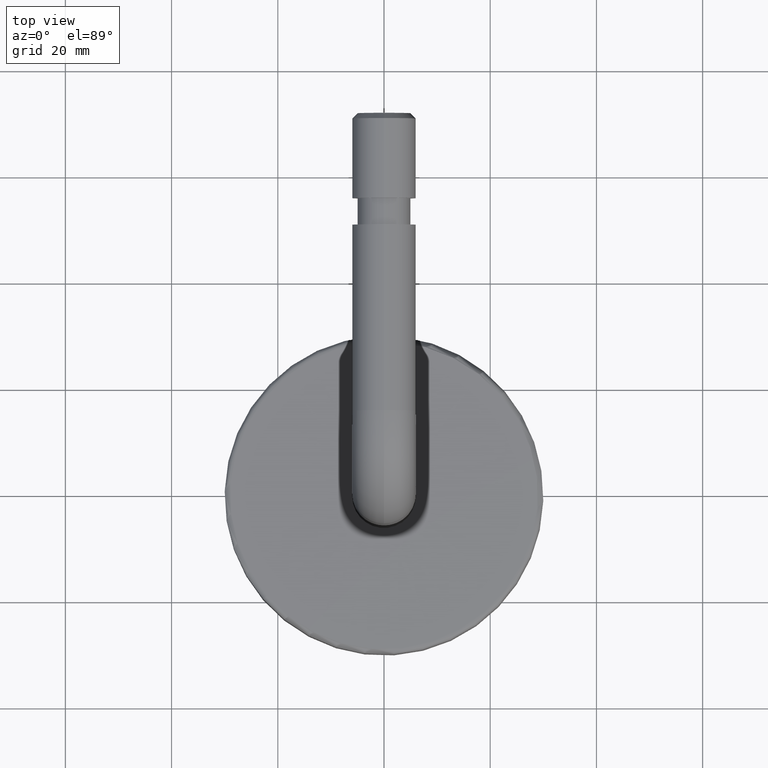
[diagram: clean part render]
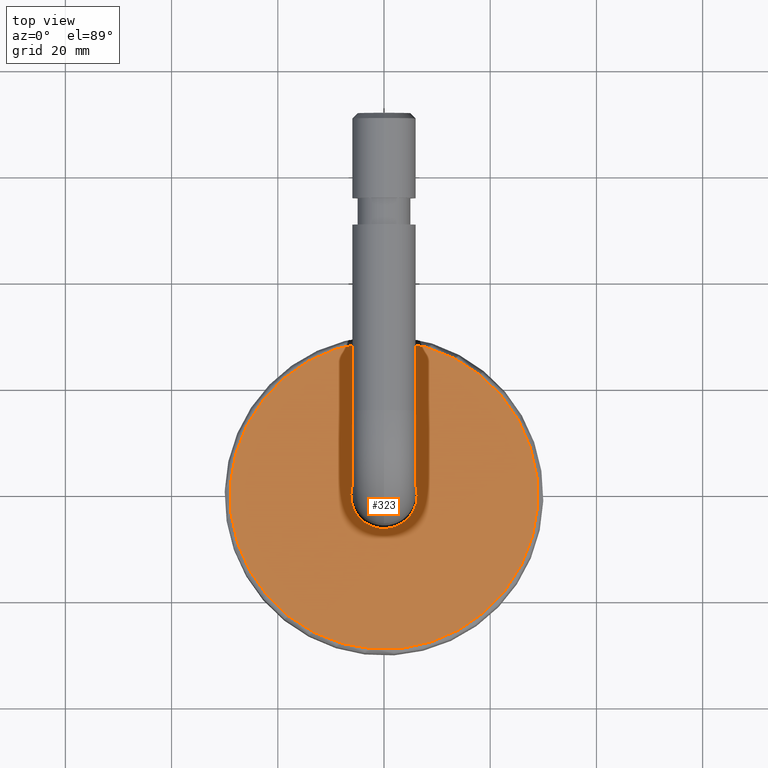
[diagram: same view with one face highlighted and labeled with its STEP entity id]
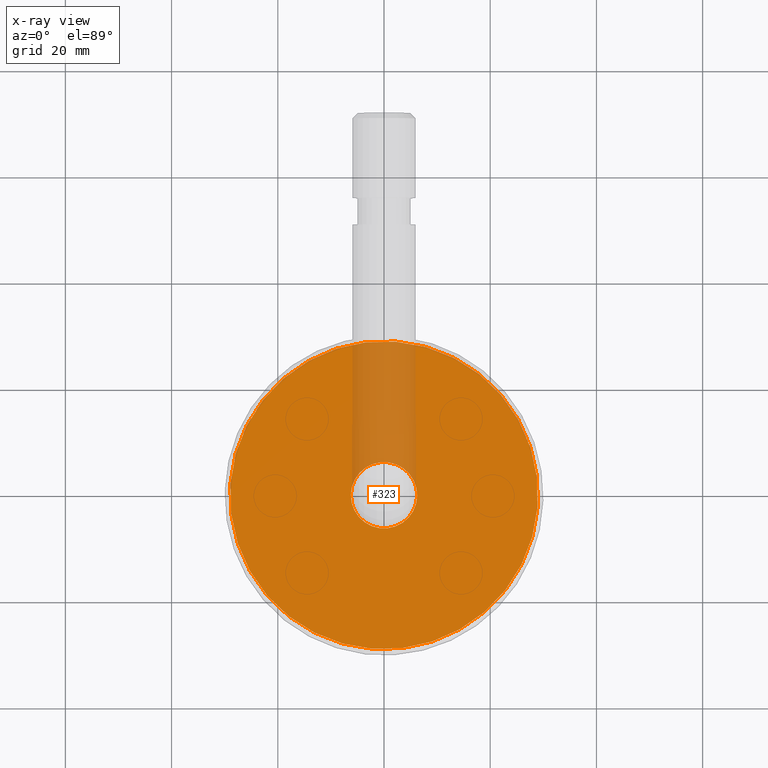
[diagram: x-ray of the same camera — body ghosted, the highlighted face saturated]
A machine part, top view. The second image highlights one B-rep face of the part: STEP entity #323.
The next image is the same camera in x-ray: the body ghosted, the highlighted face saturated — about 11% of this face is hidden behind the body in this view.
In plain terms, the highlighted planar face has unit normal (0, 0, -1).
Its self-contained STEP definition (entity closure, byte-faithful):
#323 = ADVANCED_FACE ( 'NONE', ( #9252, #2459 ), #7179, .F. ) ;
#345 = VERTEX_POINT ( 'NONE', #13220 ) ;
#387 = CARTESIAN_POINT ( 'NONE',  ( -28.99999999999999645, 3.612708057484691604E-15, 0.000000000000000000 ) ) ;
#804 = DIRECTION ( 'NONE',  ( 1.000000000000000000, 0.000000000000000000, 0.000000000000000000 ) ) ;
#1136 = ORIENTED_EDGE ( 'NONE', *, *, #13592, .F. ) ;
#2093 = DIRECTION ( 'NONE',  ( -0.000000000000000000, -0.000000000000000000, 1.000000000000000000 ) ) ;
#2459 = FACE_OUTER_BOUND ( 'NONE', #7699, .T. ) ;
#2870 = DIRECTION ( 'NONE',  ( -0.000000000000000000, -0.000000000000000000, 1.000000000000000000 ) ) ;
#3441 = EDGE_CURVE ( 'NONE', #345, #4980, #7507, .T. ) ;
#3916 = CARTESIAN_POINT ( 'NONE',  ( 0.000000000000000000, 0.000000000000000000, 0.000000000000000000 ) ) ;
#4926 = CARTESIAN_POINT ( 'NONE',  ( 0.000000000000000000, 6.249999999999998224, 0.000000000000000000 ) ) ;
#4980 = VERTEX_POINT ( 'NONE', #13514 ) ;
#5321 = CIRCLE ( 'NONE', #14166, 6.249999999999998224 ) ;
#5425 = AXIS2_PLACEMENT_3D ( 'NONE', #4926, #8315, #10692 ) ;
#6408 = EDGE_CURVE ( 'NONE', #12886, #12982, #8225, .T. ) ;
#7179 = PLANE ( 'NONE',  #5425 ) ;
#7375 = CIRCLE ( 'NONE', #7421, 28.99999999999999645 ) ;
#7421 = AXIS2_PLACEMENT_3D ( 'NONE', #8706, #8654, #7505 ) ;
#7493 = AXIS2_PLACEMENT_3D ( 'NONE', #10263, #2093, #11508 ) ;
#7505 = DIRECTION ( 'NONE',  ( 1.000000000000000000, 0.000000000000000000, 0.000000000000000000 ) ) ;
#7507 = CIRCLE ( 'NONE', #7493, 6.249999999999998224 ) ;
#7699 = EDGE_LOOP ( 'NONE', ( #10382, #8094 ) ) ;
#7799 = DIRECTION ( 'NONE',  ( -0.000000000000000000, -0.000000000000000000, 1.000000000000000000 ) ) ;
#7847 = CARTESIAN_POINT ( 'NONE',  ( 28.99999999999999645, 0.000000000000000000, 0.000000000000000000 ) ) ;
#8071 = EDGE_LOOP ( 'NONE', ( #1136, #9199 ) ) ;
#8094 = ORIENTED_EDGE ( 'NONE', *, *, #6408, .T. ) ;
#8225 = CIRCLE ( 'NONE', #9642, 28.99999999999999645 ) ;
#8315 = DIRECTION ( 'NONE',  ( 0.000000000000000000, 0.000000000000000000, -1.000000000000000000 ) ) ;
#8654 = DIRECTION ( 'NONE',  ( -0.000000000000000000, -0.000000000000000000, 1.000000000000000000 ) ) ;
#8706 = CARTESIAN_POINT ( 'NONE',  ( 0.000000000000000000, 0.000000000000000000, 0.000000000000000000 ) ) ;
#8724 = DIRECTION ( 'NONE',  ( 1.000000000000000000, 0.000000000000000000, 0.000000000000000000 ) ) ;
#9199 = ORIENTED_EDGE ( 'NONE', *, *, #3441, .F. ) ;
#9252 = FACE_BOUND ( 'NONE', #8071, .T. ) ;
#9642 = AXIS2_PLACEMENT_3D ( 'NONE', #3916, #2870, #8724 ) ;
#10263 = CARTESIAN_POINT ( 'NONE',  ( 0.000000000000000000, 0.000000000000000000, 0.000000000000000000 ) ) ;
#10382 = ORIENTED_EDGE ( 'NONE', *, *, #10825, .T. ) ;
#10692 = DIRECTION ( 'NONE',  ( -1.000000000000000000, 0.000000000000000000, -0.000000000000000000 ) ) ;
#10825 = EDGE_CURVE ( 'NONE', #12982, #12886, #7375, .T. ) ;
#11508 = DIRECTION ( 'NONE',  ( 1.000000000000000000, 0.000000000000000000, 0.000000000000000000 ) ) ;
#12886 = VERTEX_POINT ( 'NONE', #387 ) ;
#12982 = VERTEX_POINT ( 'NONE', #7847 ) ;
#13220 = CARTESIAN_POINT ( 'NONE',  ( -6.249999999999998224, 7.654042494670955634E-16, 0.000000000000000000 ) ) ;
#13514 = CARTESIAN_POINT ( 'NONE',  ( 6.249999999999998224, 0.000000000000000000, 0.000000000000000000 ) ) ;
#13592 = EDGE_CURVE ( 'NONE', #4980, #345, #5321, .T. ) ;
#14166 = AXIS2_PLACEMENT_3D ( 'NONE', #14768, #7799, #804 ) ;
#14768 = CARTESIAN_POINT ( 'NONE',  ( 0.000000000000000000, 0.000000000000000000, 0.000000000000000000 ) ) ;